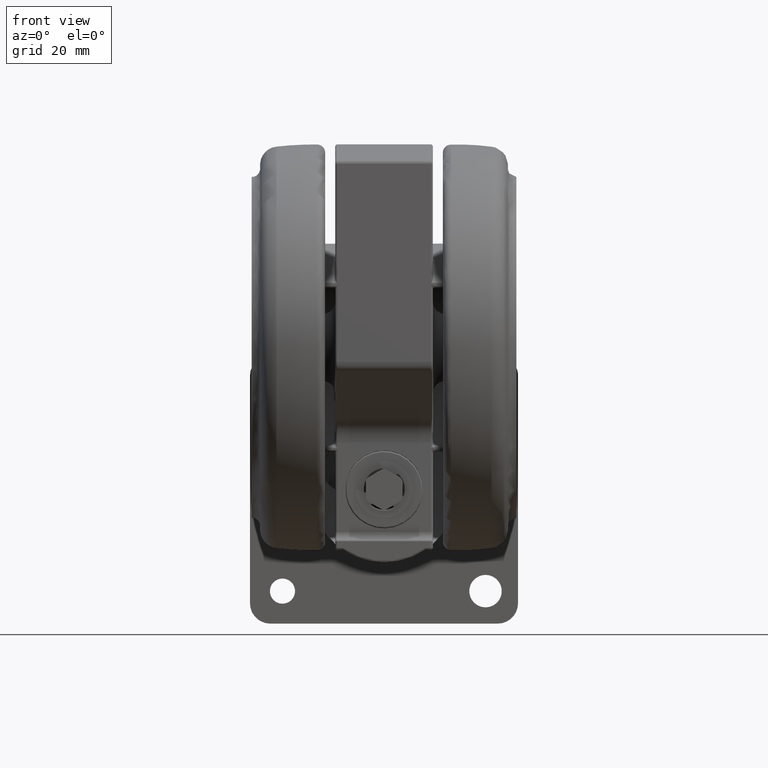
[diagram: clean part render]
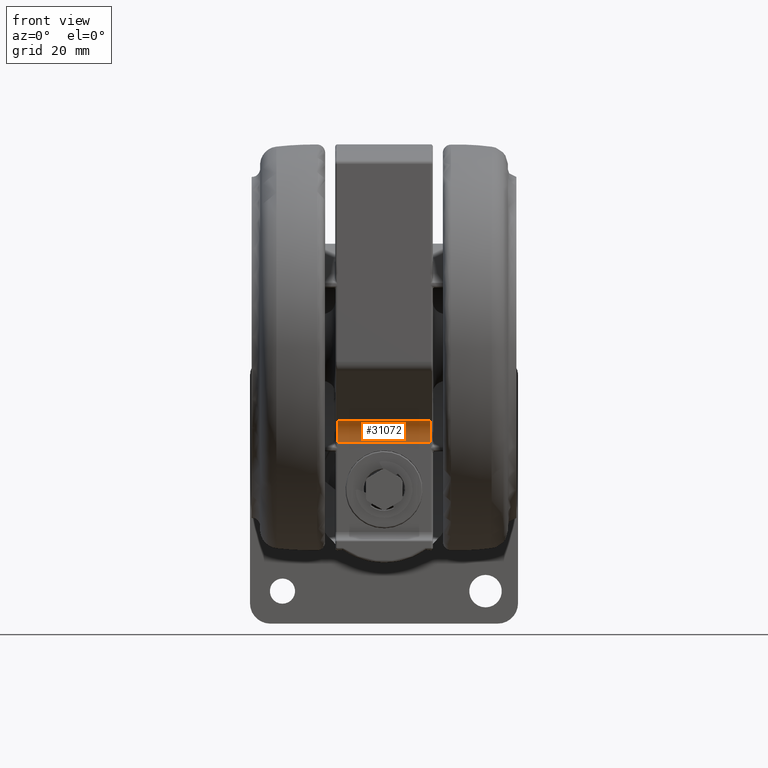
[diagram: same view with one face highlighted and labeled with its STEP entity id]
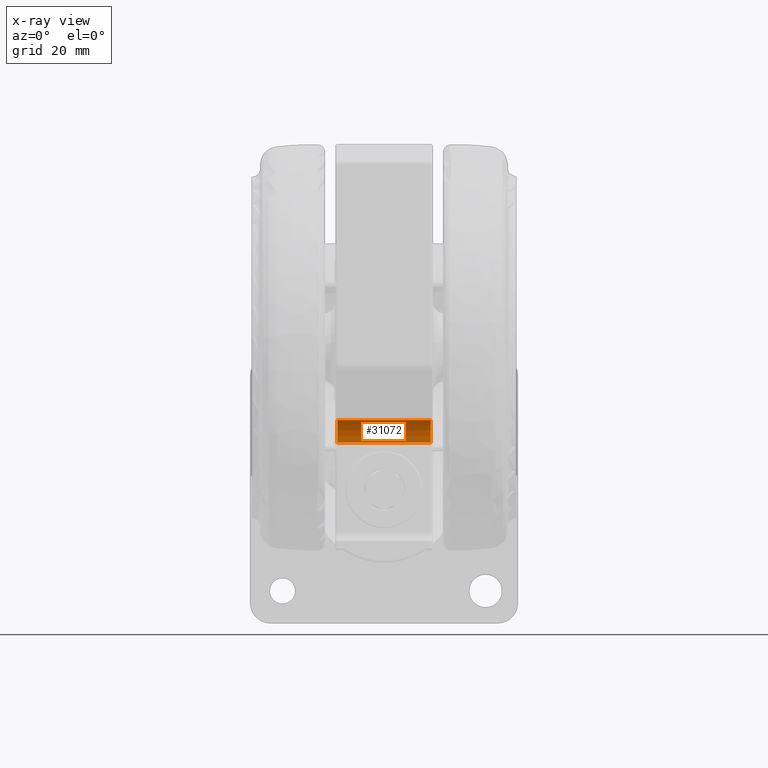
[diagram: x-ray of the same camera — body ghosted, the highlighted face saturated]
A machine part, front view. The second image highlights one B-rep face of the part: STEP entity #31072.
The next image is the same camera in x-ray: the body ghosted, the highlighted face saturated — about 0% of this face is hidden behind the body in this view.
In plain terms, the highlighted cylindrical surface (edge-blend (fillet) strip) has radius 7 mm, axis along (-1, 0, 0).
Its self-contained STEP definition (entity closure, byte-faithful):
#5206 = CIRCLE ( 'NONE', #69251, 7.000000000000001800 ) ;
#5764 = VERTEX_POINT ( 'NONE', #60945 ) ;
#7221 = LINE ( 'NONE', #25736, #37391 ) ;
#7300 = ORIENTED_EDGE ( 'NONE', *, *, #51941, .F. ) ;
#7987 = CARTESIAN_POINT ( 'NONE',  ( 24.48872555960418000, -2.320574121641435300, -20.59999999999989800 ) ) ;
#10698 = CYLINDRICAL_SURFACE ( 'NONE', #47383, 7.000000000000001800 ) ;
#10781 = DIRECTION ( 'NONE',  ( 0.0000000000000000000, 0.0000000000000000000, 1.000000000000000000 ) ) ;
#10795 = VERTEX_POINT ( 'NONE', #50417 ) ;
#13799 = CARTESIAN_POINT ( 'NONE',  ( 23.02200141729800700, 4.524038379470385800, -44.59999999999990200 ) ) ;
#19447 = EDGE_CURVE ( 'NONE', #5764, #10795, #65849, .T. ) ;
#19720 = DIRECTION ( 'NONE',  ( 0.0000000000000000000, 0.0000000000000000000, 1.000000000000000000 ) ) ;
#25736 = CARTESIAN_POINT ( 'NONE',  ( 18.16198001830128600, 0.6748041275290994600, -20.59999999999989800 ) ) ;
#26660 = DIRECTION ( 'NONE',  ( -0.0000000000000000000, 0.0000000000000000000, -1.000000000000000000 ) ) ;
#28089 = DIRECTION ( 'NONE',  ( -0.0000000000000000000, -0.0000000000000000000, -1.000000000000000000 ) ) ;
#29792 = ORIENTED_EDGE ( 'NONE', *, *, #44648, .T. ) ;
#31072 = ADVANCED_FACE ( 'NONE', ( #42753 ), #10698, .F. ) ;
#31980 = CARTESIAN_POINT ( 'NONE',  ( 23.02200141729800700, 4.524038379470385800, -21.09999999999989800 ) ) ;
#32036 = CARTESIAN_POINT ( 'NONE',  ( 18.16198001830128600, 0.6748041275290994600, -21.09999999999989800 ) ) ;
#35267 = EDGE_CURVE ( 'NONE', #5764, #69861, #7221, .T. ) ;
#36943 = ORIENTED_EDGE ( 'NONE', *, *, #19447, .T. ) ;
#37391 = VECTOR ( 'NONE', #19720, 1000.000000000000000 ) ;
#39057 = AXIS2_PLACEMENT_3D ( 'NONE', #64301, #28089, #70350 ) ;
#42213 = VECTOR ( 'NONE', #62060, 1000.000000000000000 ) ;
#42753 = FACE_OUTER_BOUND ( 'NONE', #63799, .T. ) ;
#44648 = EDGE_CURVE ( 'NONE', #49952, #69861, #5206, .T. ) ;
#46914 = CARTESIAN_POINT ( 'NONE',  ( 24.48872555960418000, -2.320574121641435300, -21.09999999999989800 ) ) ;
#47383 = AXIS2_PLACEMENT_3D ( 'NONE', #7987, #26660, #68397 ) ;
#49952 = VERTEX_POINT ( 'NONE', #31980 ) ;
#50417 = CARTESIAN_POINT ( 'NONE',  ( 23.02200141729800700, 4.524038379470385800, -44.09999999999990200 ) ) ;
#51941 = EDGE_CURVE ( 'NONE', #49952, #10795, #60206, .T. ) ;
#52980 = DIRECTION ( 'NONE',  ( 0.9778017858731171700, 0.2095320203294540300, 0.0000000000000000000 ) ) ;
#60206 = LINE ( 'NONE', #13799, #42213 ) ;
#60945 = CARTESIAN_POINT ( 'NONE',  ( 18.16198001830128600, 0.6748041275290994600, -44.09999999999990200 ) ) ;
#62060 = DIRECTION ( 'NONE',  ( -0.0000000000000000000, -0.0000000000000000000, -1.000000000000000000 ) ) ;
#63799 = EDGE_LOOP ( 'NONE', ( #68769, #36943, #7300, #29792 ) ) ;
#64301 = CARTESIAN_POINT ( 'NONE',  ( 24.48872555960418000, -2.320574121641435300, -44.09999999999990200 ) ) ;
#65849 = CIRCLE ( 'NONE', #39057, 7.000000000000002700 ) ;
#68397 = DIRECTION ( 'NONE',  ( -0.9778017858731171700, -0.2095320203294540300, 0.0000000000000000000 ) ) ;
#68769 = ORIENTED_EDGE ( 'NONE', *, *, #35267, .F. ) ;
#69251 = AXIS2_PLACEMENT_3D ( 'NONE', #46914, #10781, #52980 ) ;
#69861 = VERTEX_POINT ( 'NONE', #32036 ) ;
#70350 = DIRECTION ( 'NONE',  ( 0.9778017858731170600, 0.2095320203294548700, 0.0000000000000000000 ) ) ;